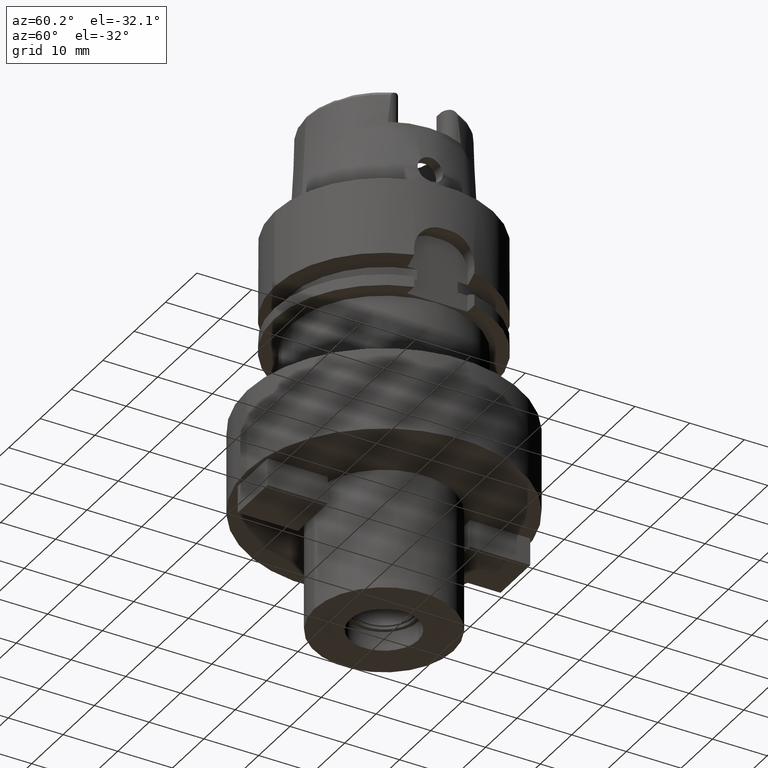
[diagram: clean part render]
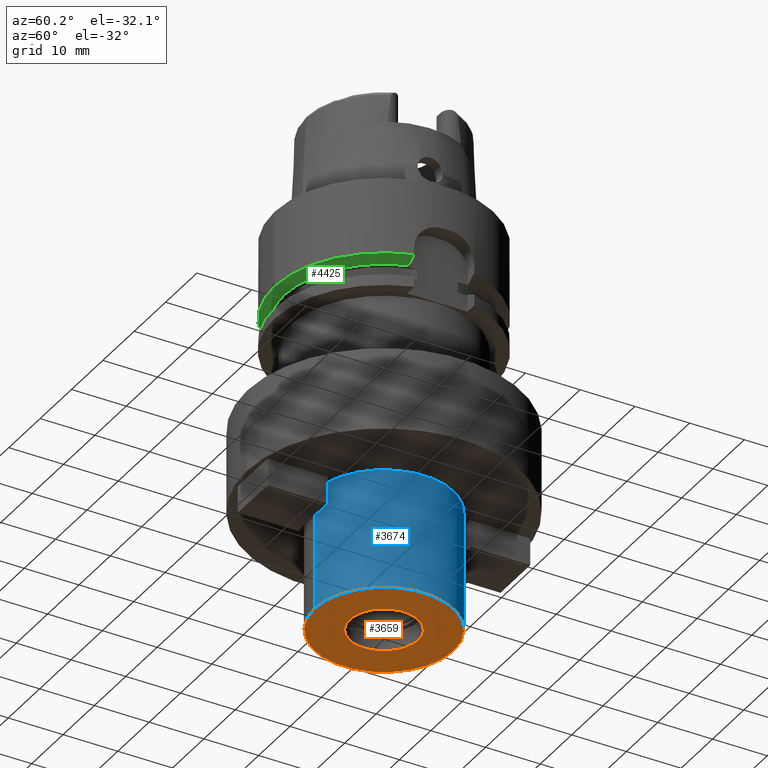
[diagram: same view with three faces highlighted in distinct colors, each labeled with its STEP entity id]
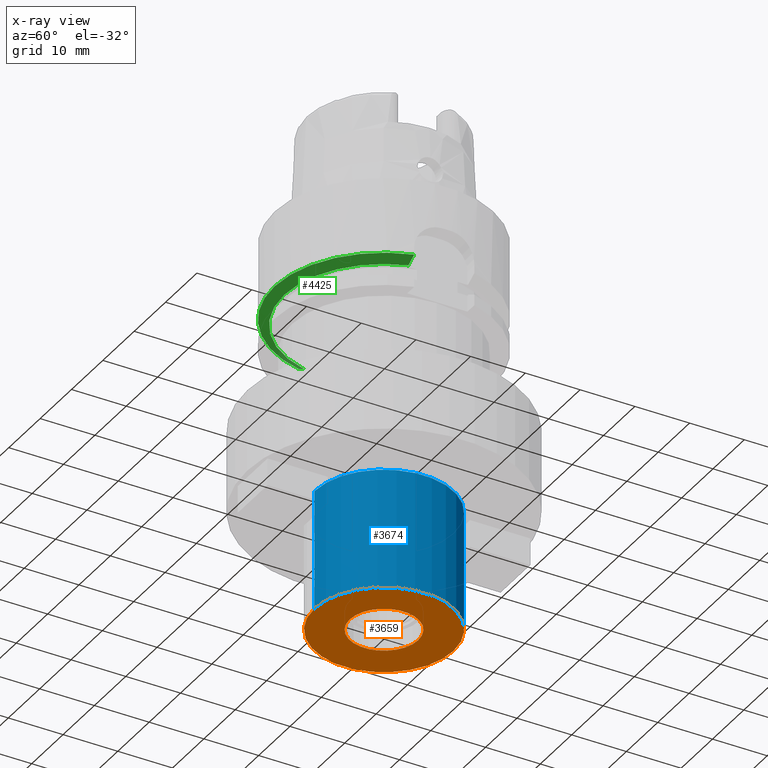
[diagram: x-ray of the same camera — body ghosted, the three highlighted faces saturated]
A machine part, auxiliary view with three faces highlighted in distinct colors.
The next image is the same camera in x-ray (body ghosted, the three faces saturated) — at least one of them is partly hidden behind the body in this view.
Their STEP definitions:

[orange] entity #3659 — the highlighted planar face has unit normal (0, 0, 1).
#1017=CARTESIAN_POINT('',(0.E0,0.E0,-7.2E1));
#1018=DIRECTION('',(0.E0,0.E0,1.E0));
#1019=DIRECTION('',(0.E0,-1.E0,0.E0));
#1020=AXIS2_PLACEMENT_3D('',#1017,#1018,#1019);
#1025=CARTESIAN_POINT('',(0.E0,0.E0,-7.2E1));
#1026=DIRECTION('',(0.E0,0.E0,1.E0));
#1027=DIRECTION('',(0.E0,1.E0,0.E0));
#1028=AXIS2_PLACEMENT_3D('',#1025,#1026,#1027);
#1033=CARTESIAN_POINT('',(0.E0,0.E0,-7.2E1));
#1034=DIRECTION('',(0.E0,0.E0,-1.E0));
#1035=DIRECTION('',(0.E0,-1.E0,0.E0));
#1036=AXIS2_PLACEMENT_3D('',#1033,#1034,#1035);
#1041=CARTESIAN_POINT('',(0.E0,0.E0,-7.2E1));
#1042=DIRECTION('',(0.E0,0.E0,-1.E0));
#1043=DIRECTION('',(0.E0,1.E0,0.E0));
#1044=AXIS2_PLACEMENT_3D('',#1041,#1042,#1043);
#2667=CARTESIAN_POINT('',(0.E0,6.25E0,-7.2E1));
#2668=VERTEX_POINT('',#2667);
#2669=CARTESIAN_POINT('',(0.E0,-6.25E0,-7.2E1));
#2670=VERTEX_POINT('',#2669);
#2671=CARTESIAN_POINT('',(0.E0,-1.27E1,-7.2E1));
#2672=CARTESIAN_POINT('',(0.E0,1.27E1,-7.2E1));
#2673=VERTEX_POINT('',#2671);
#2674=VERTEX_POINT('',#2672);
#3644=CARTESIAN_POINT('',(0.E0,0.E0,-7.2E1));
#3645=DIRECTION('',(0.E0,0.E0,1.E0));
#3646=DIRECTION('',(0.E0,1.E0,0.E0));
#3647=AXIS2_PLACEMENT_3D('',#3644,#3645,#3646);
#3648=PLANE('',#3647);
#3650=ORIENTED_EDGE('',*,*,#3649,.T.);
#3652=ORIENTED_EDGE('',*,*,#3651,.T.);
#3653=EDGE_LOOP('',(#3650,#3652));
#3654=FACE_OUTER_BOUND('',#3653,.F.);
#3655=ORIENTED_EDGE('',*,*,#3637,.T.);
#3656=ORIENTED_EDGE('',*,*,#3626,.T.);
#3657=EDGE_LOOP('',(#3655,#3656));
#3658=FACE_BOUND('',#3657,.F.);
#1021=CIRCLE('',#1020,1.27E1);
#1029=CIRCLE('',#1028,1.27E1);
#1037=CIRCLE('',#1036,6.25E0);
#1045=CIRCLE('',#1044,6.25E0);
#3626=EDGE_CURVE('',#2668,#2670,#1045,.T.);
#3637=EDGE_CURVE('',#2670,#2668,#1037,.T.);
#3649=EDGE_CURVE('',#2673,#2674,#1021,.T.);
#3651=EDGE_CURVE('',#2674,#2673,#1029,.T.);
#3659=ADVANCED_FACE('',(#3654,#3658),#3648,.F.);

[blue] entity #3674 — the highlighted cylindrical surface (partial cylindrical patch) has radius 12.7 mm, axis along (0, 0, 1).
#1017=CARTESIAN_POINT('',(0.E0,0.E0,-7.2E1));
#1018=DIRECTION('',(0.E0,0.E0,1.E0));
#1019=DIRECTION('',(0.E0,-1.E0,0.E0));
#1020=AXIS2_PLACEMENT_3D('',#1017,#1018,#1019);
#1049=DIRECTION('',(0.E0,0.E0,-1.E0));
#1050=VECTOR('',#1049,2.2E1);
#1051=CARTESIAN_POINT('',(0.E0,1.27E1,-5.E1));
#1052=LINE('',#1051,#1050);
#1056=DIRECTION('',(0.E0,0.E0,-1.E0));
#1057=VECTOR('',#1056,2.2E1);
#1058=CARTESIAN_POINT('',(0.E0,-1.27E1,-5.E1));
#1059=LINE('',#1058,#1057);
#1087=CARTESIAN_POINT('',(0.E0,0.E0,-5.E1));
#1088=DIRECTION('',(0.E0,0.E0,-1.E0));
#1089=DIRECTION('',(0.E0,1.E0,0.E0));
#1090=AXIS2_PLACEMENT_3D('',#1087,#1088,#1089);
#2671=CARTESIAN_POINT('',(0.E0,-1.27E1,-7.2E1));
#2672=CARTESIAN_POINT('',(0.E0,1.27E1,-7.2E1));
#2673=VERTEX_POINT('',#2671);
#2674=VERTEX_POINT('',#2672);
#2675=CARTESIAN_POINT('',(0.E0,1.27E1,-5.E1));
#2676=VERTEX_POINT('',#2675);
#2677=CARTESIAN_POINT('',(0.E0,-1.27E1,-5.E1));
#2678=VERTEX_POINT('',#2677);
#3660=CARTESIAN_POINT('',(0.E0,0.E0,-7.66E1));
#3661=DIRECTION('',(0.E0,0.E0,1.E0));
#3662=DIRECTION('',(0.E0,1.E0,0.E0));
#3663=AXIS2_PLACEMENT_3D('',#3660,#3661,#3662);
#3664=CYLINDRICAL_SURFACE('',#3663,1.27E1);
#3666=ORIENTED_EDGE('',*,*,#3665,.T.);
#3667=ORIENTED_EDGE('',*,*,#3649,.F.);
#3669=ORIENTED_EDGE('',*,*,#3668,.F.);
#3671=ORIENTED_EDGE('',*,*,#3670,.F.);
#3672=EDGE_LOOP('',(#3666,#3667,#3669,#3671));
#3673=FACE_OUTER_BOUND('',#3672,.F.);
#1021=CIRCLE('',#1020,1.27E1);
#1091=CIRCLE('',#1090,1.27E1);
#3649=EDGE_CURVE('',#2673,#2674,#1021,.T.);
#3665=EDGE_CURVE('',#2676,#2674,#1052,.T.);
#3668=EDGE_CURVE('',#2678,#2673,#1059,.T.);
#3670=EDGE_CURVE('',#2676,#2678,#1091,.T.);
#3674=ADVANCED_FACE('',(#3673),#3664,.T.);

[green] entity #4425 — the highlighted conical surface has half-angle 60 deg.
#1849=CARTESIAN_POINT('',(0.E0,0.E0,-1.5E1));
#1850=DIRECTION('',(0.E0,0.E0,1.E0));
#1851=DIRECTION('',(-9.690618294451E-1,-2.468180923526E-1,0.E0));
#1852=AXIS2_PLACEMENT_3D('',#1849,#1850,#1851);
#1857=CARTESIAN_POINT('',(0.E0,0.E0,-1.5E1));
#1858=DIRECTION('',(0.E0,0.E0,1.E0));
#1859=DIRECTION('',(0.E0,-1.E0,0.E0));
#1860=AXIS2_PLACEMENT_3D('',#1857,#1858,#1859);
#2050=CARTESIAN_POINT('',(-1.766798451012E1,-4.5E0,-1.5E1));
#2051=CARTESIAN_POINT('',(-1.787038807255E1,-4.5E0,-1.488675761378E1));
#2052=CARTESIAN_POINT('',(-1.827500004452E1,-4.5E0,-1.466013283402E1));
#2053=CARTESIAN_POINT('',(-1.888138594764E1,-4.5E0,-1.431986964319E1));
#2054=CARTESIAN_POINT('',(-1.928530198040E1,-4.499999999999E0,
-1.409283712878E1));
#2055=CARTESIAN_POINT('',(-1.948717526991E1,-4.499999999999E0,
-1.397927405784E1));
#2060=CARTESIAN_POINT('',(0.E0,0.E0,-1.397927405784E1));
#2061=DIRECTION('',(0.E0,0.E0,1.E0));
#2062=DIRECTION('',(-9.743587634953E-1,-2.249999999999E-1,0.E0));
#2063=AXIS2_PLACEMENT_3D('',#2060,#2061,#2062);
#2068=CARTESIAN_POINT('',(0.E0,0.E0,-1.397927405784E1));
#2069=DIRECTION('',(0.E0,0.E0,1.E0));
#2070=DIRECTION('',(0.E0,-1.E0,0.E0));
#2071=AXIS2_PLACEMENT_3D('',#2068,#2069,#2070);
#2076=CARTESIAN_POINT('',(1.922888455225E1,-5.499999897824E0,
-1.397927491404E1));
#2077=CARTESIAN_POINT('',(1.901862516368E1,-5.499999897824E0,
-1.409598781598E1));
#2078=CARTESIAN_POINT('',(1.860152751485E1,-5.499999979538E0,
-1.432722453676E1));
#2079=CARTESIAN_POINT('',(1.798613613200E1,-5.500000224883E0,
-1.466747927412E1));
#2080=CARTESIAN_POINT('',(1.758269783784E1,-5.499999488916E0,
-1.488990526028E1));
#2081=CARTESIAN_POINT('',(1.738269051786E1,-5.499999488916E0,-1.5E1));
#2770=CARTESIAN_POINT('',(-1.766798451012E1,-4.5E0,-1.5E1));
#2772=VERTEX_POINT('',#2770);
#2777=CARTESIAN_POINT('',(-1.948717526991E1,-4.499999999999E0,
-1.397927405784E1));
#2778=VERTEX_POINT('',#2777);
#2833=CARTESIAN_POINT('',(2.101831119029E-14,-1.823205080757E1,-1.5E1));
#2834=CARTESIAN_POINT('',(1.738268324079E1,-5.5E0,-1.5E1));
#2835=VERTEX_POINT('',#2833);
#2836=VERTEX_POINT('',#2834);
#2847=CARTESIAN_POINT('',(0.E0,-2.E1,-1.397927405784E1));
#2848=VERTEX_POINT('',#2847);
#2849=CARTESIAN_POINT('',(1.922888452303E1,-5.499999999999E0,
-1.397927405784E1));
#2850=VERTEX_POINT('',#2849);
#4412=CARTESIAN_POINT('',(0.E0,0.E0,-1.448963702892E1));
#4413=DIRECTION('',(0.E0,0.E0,1.E0));
#4414=DIRECTION('',(0.E0,1.E0,0.E0));
#4415=AXIS2_PLACEMENT_3D('',#4412,#4413,#4414);
#4416=CONICAL_SURFACE('',#4415,1.911602540378E1,6.E1);
#4417=ORIENTED_EDGE('',*,*,#4312,.T.);
#4418=ORIENTED_EDGE('',*,*,#4090,.T.);
#4419=ORIENTED_EDGE('',*,*,#4226,.T.);
#4420=ORIENTED_EDGE('',*,*,#4273,.T.);
#4421=ORIENTED_EDGE('',*,*,#4291,.F.);
#4422=ORIENTED_EDGE('',*,*,#4289,.F.);
#4423=EDGE_LOOP('',(#4417,#4418,#4419,#4420,#4421,#4422));
#4424=FACE_OUTER_BOUND('',#4423,.F.);
#1853=CIRCLE('',#1852,1.823205080757E1);
#1861=CIRCLE('',#1860,1.823205080757E1);
#2056=B_SPLINE_CURVE_WITH_KNOTS('',3,(#2050,#2051,#2052,#2053,#2054,#2055),
.UNSPECIFIED.,.F.,.F.,(4,1,1,4),(0.E0,3.333333333333E-1,6.666666666667E-1,1.E0),
.UNSPECIFIED.);
#2064=CIRCLE('',#2063,2.E1);
#2072=CIRCLE('',#2071,2.E1);
#2082=B_SPLINE_CURVE_WITH_KNOTS('',3,(#2076,#2077,#2078,#2079,#2080,#2081),
.UNSPECIFIED.,.F.,.F.,(4,1,1,4),(0.E0,3.333333333333E-1,6.666666666667E-1,1.E0),
.UNSPECIFIED.);
#4090=EDGE_CURVE('',#2778,#2848,#2064,.T.);
#4226=EDGE_CURVE('',#2848,#2850,#2072,.T.);
#4273=EDGE_CURVE('',#2850,#2836,#2082,.T.);
#4289=EDGE_CURVE('',#2772,#2835,#1853,.T.);
#4291=EDGE_CURVE('',#2835,#2836,#1861,.T.);
#4312=EDGE_CURVE('',#2772,#2778,#2056,.T.);
#4425=ADVANCED_FACE('',(#4424),#4416,.T.);